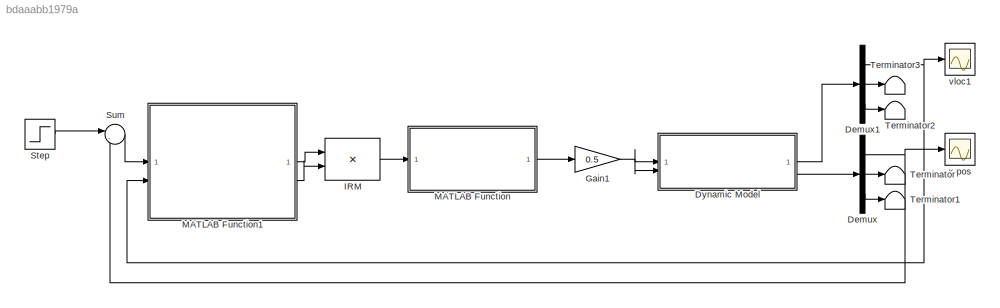
MODEL slx_bdaaabb1979a
KIND model
CONFIG AbsTol = auto
CONFIG EnableMultiTasking = off
CONFIG FixedStep = auto
CONFIG MaxStep = auto
CONFIG MinStep = auto
CONFIG RelTol = 1e-3
CONFIG SampleTimeConstraint = Unconstrained
CONFIG SolverName = VariableStepAuto
CONFIG StartTime = 0.0
CONFIG StopTime = 60
BLOCK [Demux] Demux
  Outputs = 3
BLOCK [Demux] Demux1
  Outputs = 3
BLOCK [ModelReference] Dynamic Model
  ModelNameDialog = USVModel.slx
  ModelReferenceVersion = 7.1
BLOCK [Gain] Gain1
  Gain = 0.5
BLOCK [Product] IRM
  Multiplication = Matrix(*)
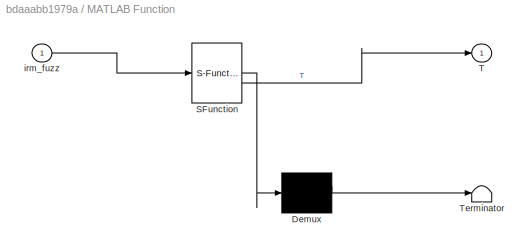
BLOCK [SubSystem] MATLAB Function
  ErrorFcn = Stateflow.Translate.translate
  LibrarySourceBlock = simulink/User-Defined\nFunctions/MATLAB Function
  PermitHierarchicalResolution = ExplicitOnly
  SFBlockType = MATLAB Function
  TreatAsAtomicUnit = on
BLOCK [Demux] MATLAB Function/ Demux 
  Outputs = 1
BLOCK [S-Function] MATLAB Function/ SFunction 
  EnableBusSupport = on
  FunctionName = sf_sfun
  PortCounts = [1 2]
  SFcnIsStateOwnerBlock = off
  SFunctionDeploymentMode = off
  Tag = Stateflow S-Function 2
BLOCK [Terminator] MATLAB Function/ Terminator 
BLOCK [Outport] MATLAB Function/T
BLOCK [Inport] MATLAB Function/irm_fuzz
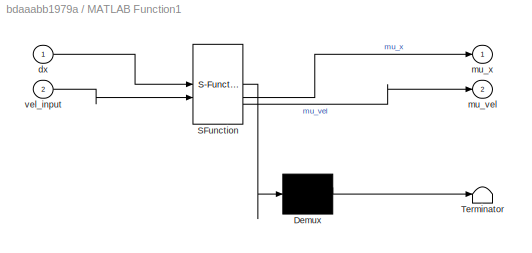
BLOCK [SubSystem] MATLAB Function1
  ErrorFcn = Stateflow.Translate.translate
  LibrarySourceBlock = simulink/User-Defined\nFunctions/MATLAB Function
  PermitHierarchicalResolution = ExplicitOnly
  SFBlockType = MATLAB Function
  TreatAsAtomicUnit = on
BLOCK [Demux] MATLAB Function1/ Demux 
  Outputs = 1
BLOCK [S-Function] MATLAB Function1/ SFunction 
  EnableBusSupport = on
  FunctionName = sf_sfun
  PortCounts = [2 3]
  SFcnIsStateOwnerBlock = off
  SFunctionDeploymentMode = off
  Tag = Stateflow S-Function 1
BLOCK [Terminator] MATLAB Function1/ Terminator 
BLOCK [Inport] MATLAB Function1/dx
BLOCK [Outport] MATLAB Function1/mu_vel
  Port = 2
BLOCK [Outport] MATLAB Function1/mu_x
BLOCK [Inport] MATLAB Function1/vel_input
  Port = 2
BLOCK [Step] Step
  After = 30
  SampleTime = 0
  Time = 5
BLOCK [Sum] Sum
  Inputs = |-+
BLOCK [Terminator] Terminator
BLOCK [Terminator] Terminator1
BLOCK [Terminator] Terminator2
BLOCK [Terminator] Terminator3
BLOCK [Scope] vloc1
  Floating = off
  NumInputPorts = 1
  ScopeSpecificationString = Simulink.scopes.TimeScopeBlockCfg('CurrentConfiguration', extmgr.ConfigurationSet(extmgr.Configuration('Core','General UI',true,'FigureColor',[1 1 1]),extmgr.Configuration('Core','Source UI',true),extmgr.Configuration('Sources','WiredSimulink',true,'DataLoggingVariableName','ScopeData1'),extmgr.Configuration('Visuals','Time Domain',true,'SerializedDisplays',{struct('MinYLimReal','-0.55993','MaxYLi...<+1519ch>
BLOCK [Scope] x-pos
  Floating = off
  NumInputPorts = 1
  ScopeSpecificationString = Simulink.scopes.TimeScopeBlockCfg('CurrentConfiguration', extmgr.ConfigurationSet(extmgr.Configuration('Core','General UI',true,'FigureColor',[1 1 1]),extmgr.Configuration('Core','Source UI',true),extmgr.Configuration('Sources','WiredSimulink',true),extmgr.Configuration('Visuals','Time Domain',true,'SerializedDisplays',{struct('MinYLimReal','-3.80477','MaxYLimReal','34.24296','YLabelReal','','MinY...<+1478ch>
NET Demux1:1 -> MATLAB Function1:2, vloc1:1
LINE Demux1:2 -> Terminator3:1
LINE Demux1:3 -> Terminator2:1
NET Demux:1 -> Sum:2, x-pos:1
LINE Demux:2 -> Terminator:1
LINE Demux:3 -> Terminator1:1
LINE Dynamic Model:1 -> Demux1:1
LINE Dynamic Model:2 -> Demux:1
NET Gain1:1 -> Dynamic Model:1, Dynamic Model:2
LINE IRM:1 -> MATLAB Function:1
LINE MATLAB Function1:1 -> IRM:1
LINE MATLAB Function1:2 -> IRM:2
LINE MATLAB Function:1 -> Gain1:1
LINE Step:1 -> Sum:1
LINE Sum:1 -> MATLAB Function1:1
note: NET lines group one-source signal fan-out (src -> all destinations, sorted); 1:1 wires keep LINE
CHART MATLAB Function states=1 transitions=1
  STATE_LABEL 'eML_blk_kernel()'
  STATE_LABEL 'SCRIPT:\nfunction T = defuzz(irm_fuzz)\n\n%trapezoid base sizes\nLB = 300;\nSB = 100;\n\n%area calulcations\narea_mat = zeros(5,5);\n\na = 1;\nb = 1;\n\nwhile a < 6\n    while b < 6\n        area_mat(a,b) = LB*irm_fuzz(a,b) - (((irm_fuzz(a,b))^2)/2)*(LB - SB);\n        b = b + 1;\n        \n    end\n    b = 1;\n    a = a + 1;\nend\n\n%centroids\nCLN = -300;\nCN = -150;\nCZ = 0;\nCP = 150;\nCLP = 300;\n\ncent_mat = [CLP,CLP,CP,...<+566ch>'
CHART MATLAB Function1 states=1 transitions=1
  STATE_LABEL 'eML_blk_kernel()'
  STATE_LABEL 'SCRIPT:\nfunction [mu_x,mu_vel] = membership_function(dx,vel_input)\n%Membership functions for the linguistic values of position error and\n%velocity\n%mu_x and mu_vel contains the following values (in order):\n%  mu_* = [LN,N,Z,P,LP]\nmu_x = zeros(5,1);\n%% Position Error\n\n% large negative (LN)\nif dx <= -15\n    mu_x(1) = 1;\nelseif dx > -15 && dx <= -9\n    mu_x(1) = -1/6*dx-3/2;\nelse\n    mu_x(1) = 0;\nend...<+1459ch>'
CHART  states=0 transitions=0
CHART  states=0 transitions=0
